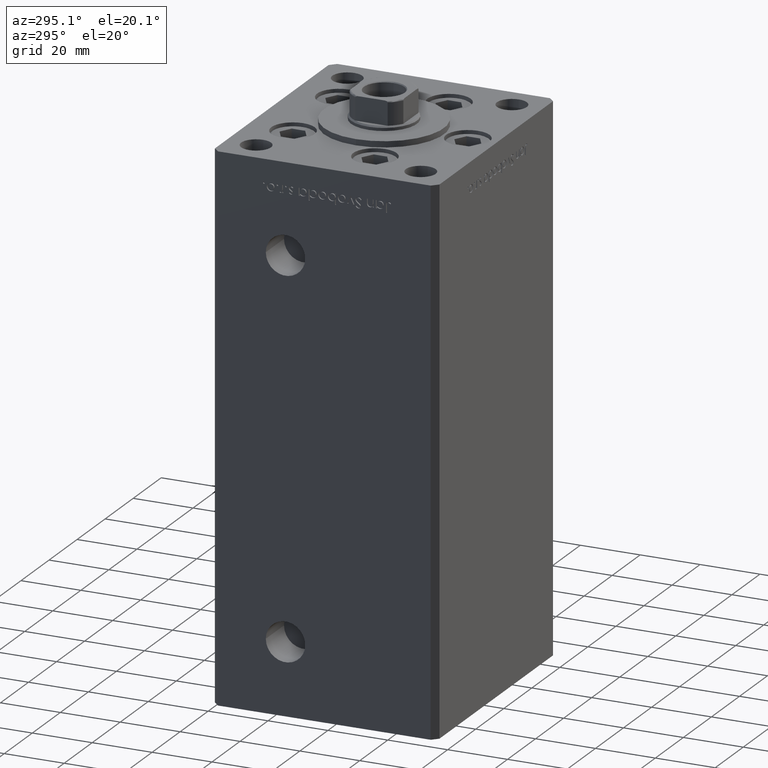
[diagram: clean part render]
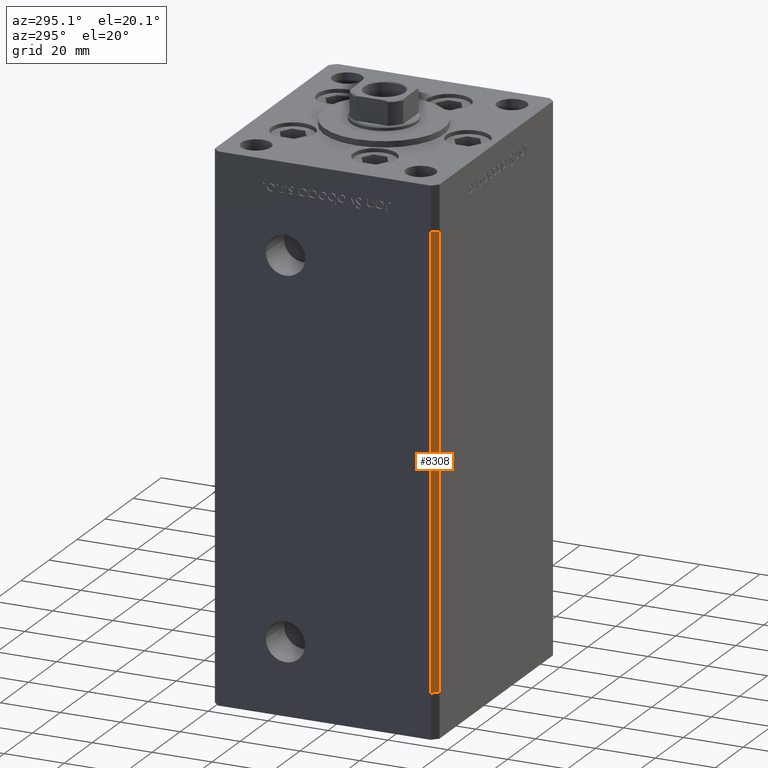
[diagram: same view with one face highlighted and labeled with its STEP entity id]
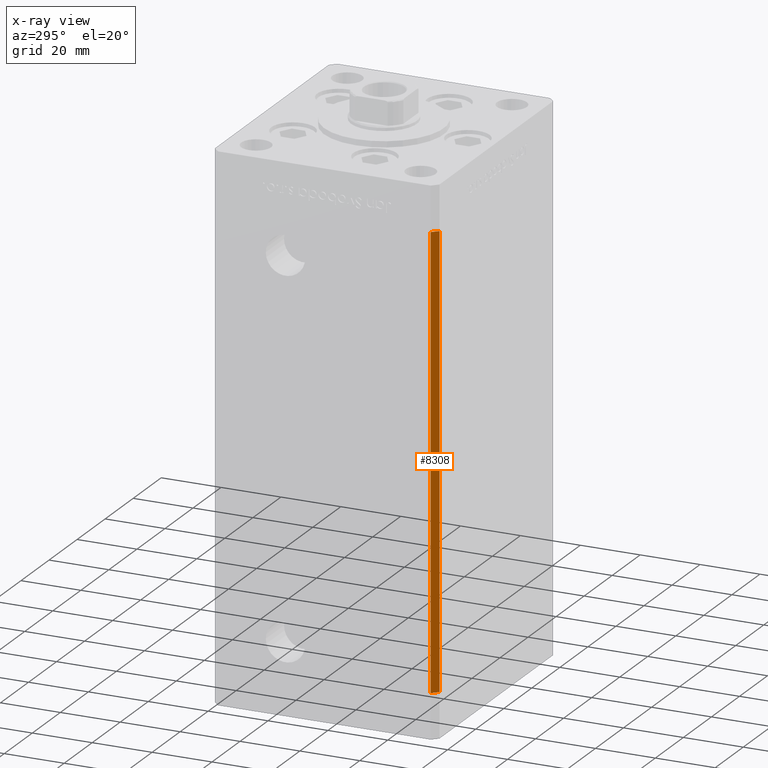
[diagram: x-ray of the same camera — body ghosted, the highlighted face saturated]
A machine part, auxiliary view. The second image highlights one B-rep face of the part: STEP entity #8308.
The next image is the same camera in x-ray: the body ghosted, the highlighted face saturated — about 0% of this face is hidden behind the body in this view.
In plain terms, the highlighted planar face has unit normal (0.7071, 0.7071, 0).
Its self-contained STEP definition (entity closure, byte-faithful):
#401 = PLANE ( 'NONE',  #49601 ) ;
#1700 = DIRECTION ( 'NONE',  ( -0.000000000000000000, -0.000000000000000000, -1.000000000000000000 ) ) ;
#2676 = CARTESIAN_POINT ( 'NONE',  ( -42.49999999999998579, -35.50000000000000711, 148.5000000000000000 ) ) ;
#3593 = DIRECTION ( 'NONE',  ( -0.7071067811865474617, 0.7071067811865474617, 0.000000000000000000 ) ) ;
#3745 = EDGE_CURVE ( 'NONE', #43381, #36190, #17257, .T. ) ;
#5396 = DIRECTION ( 'NONE',  ( -0.000000000000000000, -0.000000000000000000, -1.000000000000000000 ) ) ;
#5725 = ORIENTED_EDGE ( 'NONE', *, *, #3745, .F. ) ;
#6572 = VECTOR ( 'NONE', #5396, 1000.000000000000000 ) ;
#8308 = ADVANCED_FACE ( 'NONE', ( #16474 ), #401, .F. ) ;
#8826 = VERTEX_POINT ( 'NONE', #26094 ) ;
#9703 = EDGE_CURVE ( 'NONE', #51044, #36190, #30644, .T. ) ;
#12273 = DIRECTION ( 'NONE',  ( 0.7071067811865475727, 0.7071067811865475727, -0.000000000000000000 ) ) ;
#13358 = EDGE_LOOP ( 'NONE', ( #33767, #5725, #14736, #48750 ) ) ;
#14736 = ORIENTED_EDGE ( 'NONE', *, *, #44766, .F. ) ;
#14781 = LINE ( 'NONE', #2676, #23518 ) ;
#16474 = FACE_OUTER_BOUND ( 'NONE', #13358, .T. ) ;
#17257 = LINE ( 'NONE', #40239, #34305 ) ;
#18208 = DIRECTION ( 'NONE',  ( 0.7071067811865474617, -0.7071067811865474617, 0.000000000000000000 ) ) ;
#19018 = DIRECTION ( 'NONE',  ( 0.7071067811865474617, -0.7071067811865474617, 0.000000000000000000 ) ) ;
#23518 = VECTOR ( 'NONE', #18208, 1000.000000000000114 ) ;
#24956 = CARTESIAN_POINT ( 'NONE',  ( -42.49999999999998579, -35.50000000000000711, 0.000000000000000000 ) ) ;
#25177 = LINE ( 'NONE', #41529, #6572 ) ;
#26094 = CARTESIAN_POINT ( 'NONE',  ( -42.49999999999998579, -35.50000000000000711, 148.5000000000000000 ) ) ;
#30644 = LINE ( 'NONE', #42519, #42032 ) ;
#32569 = CARTESIAN_POINT ( 'NONE',  ( -42.49999999999998579, -35.50000000000000711, 148.5000000000000000 ) ) ;
#33767 = ORIENTED_EDGE ( 'NONE', *, *, #9703, .T. ) ;
#34305 = VECTOR ( 'NONE', #1700, 1000.000000000000000 ) ;
#36190 = VERTEX_POINT ( 'NONE', #49878 ) ;
#40239 = CARTESIAN_POINT ( 'NONE',  ( -40.49999999999998579, -37.50000000000000711, 148.5000000000000000 ) ) ;
#41529 = CARTESIAN_POINT ( 'NONE',  ( -42.49999999999998579, -35.50000000000000711, 148.5000000000000000 ) ) ;
#42032 = VECTOR ( 'NONE', #19018, 1000.000000000000114 ) ;
#42519 = CARTESIAN_POINT ( 'NONE',  ( -42.49999999999998579, -35.50000000000000711, 0.000000000000000000 ) ) ;
#43381 = VERTEX_POINT ( 'NONE', #46435 ) ;
#44766 = EDGE_CURVE ( 'NONE', #8826, #43381, #14781, .T. ) ;
#46435 = CARTESIAN_POINT ( 'NONE',  ( -40.49999999999998579, -37.50000000000000711, 148.5000000000000000 ) ) ;
#46482 = EDGE_CURVE ( 'NONE', #8826, #51044, #25177, .T. ) ;
#48750 = ORIENTED_EDGE ( 'NONE', *, *, #46482, .T. ) ;
#49601 = AXIS2_PLACEMENT_3D ( 'NONE', #32569, #12273, #3593 ) ;
#49878 = CARTESIAN_POINT ( 'NONE',  ( -40.49999999999998579, -37.50000000000000711, 0.000000000000000000 ) ) ;
#51044 = VERTEX_POINT ( 'NONE', #24956 ) ;